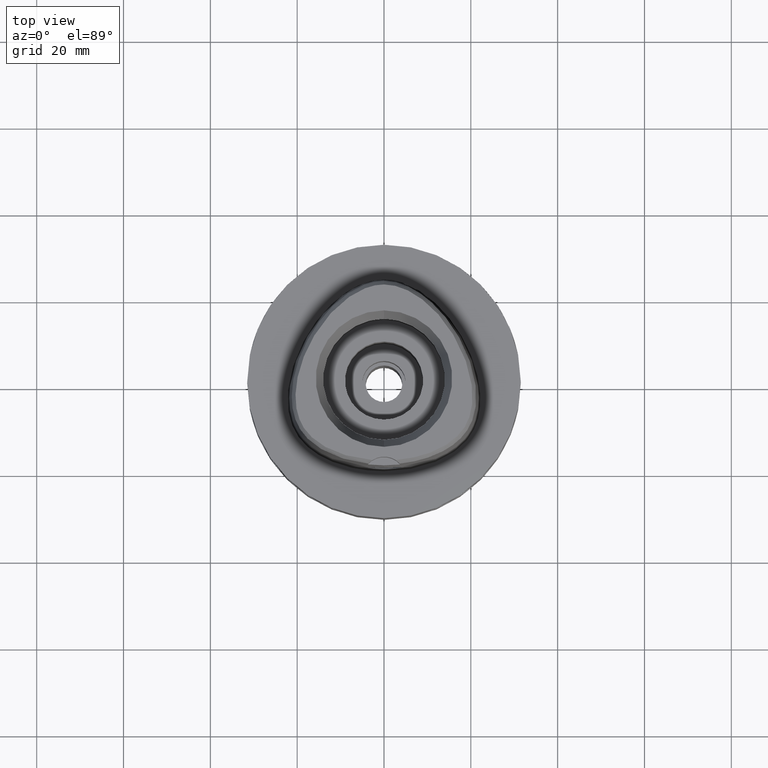
[diagram: clean part render]
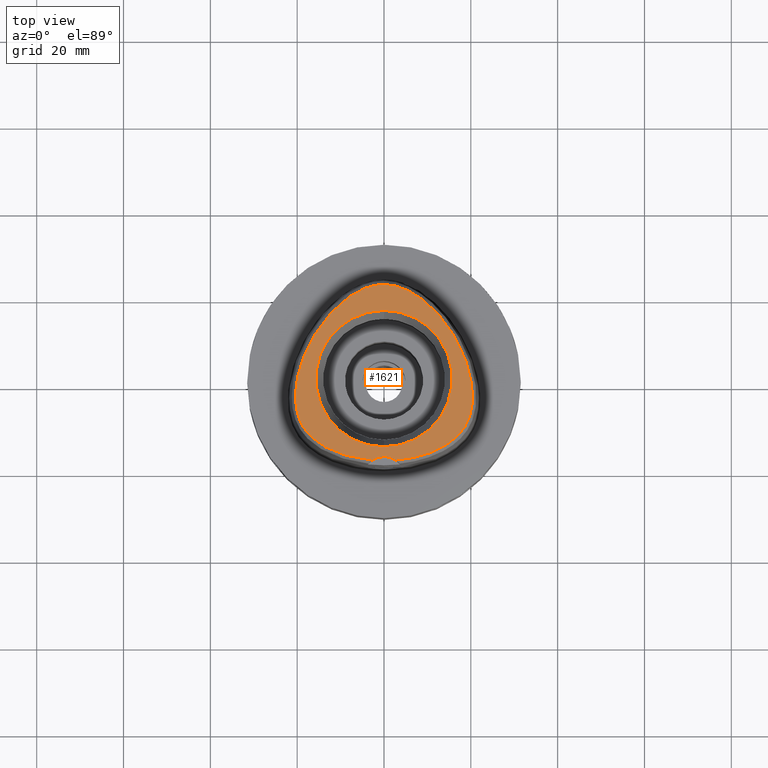
[diagram: same view with one face highlighted and labeled with its STEP entity id]
A machine part, top view. The second image highlights one B-rep face of the part: STEP entity #1621.
In plain terms, the highlighted planar face has unit normal (0, 0, 1).
Its self-contained STEP definition (entity closure, byte-faithful):
#42 = CARTESIAN_POINT ( 'NONE',  ( 8.936919536467701874, -17.64796721715526928, 37.99999999999491251 ) ) ;
#66 = ORIENTED_EDGE ( 'NONE', *, *, #806, .F. ) ;
#69 = CARTESIAN_POINT ( 'NONE',  ( -2.017025177696529337, 21.50280829368446689, 37.99999999999854339 ) ) ;
#71 = CARTESIAN_POINT ( 'NONE',  ( 19.26272899268388628, 2.870227893749941916, 37.99999999999648281 ) ) ;
#98 = CARTESIAN_POINT ( 'NONE',  ( 19.28677546797459996, -9.867757137506609766, 37.99999999999884182 ) ) ;
#120 = CARTESIAN_POINT ( 'NONE',  ( 18.24247239569350398, 5.672548708072119084, 37.99999999999898392 ) ) ;
#122 = CARTESIAN_POINT ( 'NONE',  ( -19.64434054692886633, 1.520253387635681852, 37.99999999999565148 ) ) ;
#153 = CARTESIAN_POINT ( 'NONE',  ( -17.60426951086779468, 7.098774535281950016, 37.99999999999732836 ) ) ;
#227 = AXIS2_PLACEMENT_3D ( 'NONE', #2944, #544, #598 ) ;
#304 = CARTESIAN_POINT ( 'NONE',  ( -17.45119705493778639, -12.68365517585831270, 38.00000000000115818 ) ) ;
#332 = CARTESIAN_POINT ( 'NONE',  ( -6.188376196366395021, -18.31830638231308939, 38.00000000000027711 ) ) ;
#351 = CARTESIAN_POINT ( 'NONE',  ( -7.599370508970323179, -18.01010694911634147, 38.00000000000607514 ) ) ;
#386 = AXIS2_PLACEMENT_3D ( 'NONE', #3583, #850, #4761 ) ;
#409 = CARTESIAN_POINT ( 'NONE',  ( -4.706994425064502607, -18.56721852572561815, 38.00000000000405009 ) ) ;
#434 = CARTESIAN_POINT ( 'NONE',  ( 18.79595068776498934, 4.257753965101998439, 37.99999999999964473 ) ) ;
#456 = CARTESIAN_POINT ( 'NONE',  ( -9.524337278001969054, 17.70558492631498382, 37.99999999999921840 ) ) ;
#459 = CARTESIAN_POINT ( 'NONE',  ( 13.33890749495594719, -15.84912955619630104, 37.99999999998986766 ) ) ;
#507 = VERTEX_POINT ( 'NONE', #3949 ) ;
#512 = CARTESIAN_POINT ( 'NONE',  ( 14.34383722811826267, 12.54786717290611442, 37.99999999999087663 ) ) ;
#514 = CARTESIAN_POINT ( 'NONE',  ( -1.323674540694129487, 21.61098849315879633, 38.00000000000405009 ) ) ;
#517 = CARTESIAN_POINT ( 'NONE',  ( 11.32341394162884995, -16.80569392800747153, 37.99999999999094058 ) ) ;
#544 = DIRECTION ( 'NONE',  ( 0.0000000000000000000, 0.0000000000000000000, 1.000000000000000000 ) ) ;
#571 = CARTESIAN_POINT ( 'NONE',  ( 15.24661770199557687, 11.25762885478326858, 37.99999999999347011 ) ) ;
#598 = DIRECTION ( 'NONE',  ( 0.0000000000000000000, 1.000000000000000000, 0.0000000000000000000 ) ) ;
#605 = EDGE_CURVE ( 'NONE', #3202, #4767, #3349, .T. ) ;
#682 = EDGE_LOOP ( 'NONE', ( #5007, #66 ) ) ;
#688 = CARTESIAN_POINT ( 'NONE',  ( -14.21001600787658781, -15.34519100085826082, 37.99999999999408118 ) ) ;
#716 = CARTESIAN_POINT ( 'NONE',  ( -19.78262210840121682, -8.543146992552381747, 38.00000000000013500 ) ) ;
#806 = EDGE_CURVE ( 'NONE', #507, #1078, #2995, .T. ) ;
#820 = CARTESIAN_POINT ( 'NONE',  ( 2.682287482605000051, -18.78036330228999873, 38.00000000000000000 ) ) ;
#844 = CARTESIAN_POINT ( 'NONE',  ( 10.17751632998310285, -17.24426134458626336, 37.99999999999257483 ) ) ;
#850 = DIRECTION ( 'NONE',  ( 0.0000000000000000000, 0.0000000000000000000, 1.000000000000000000 ) ) ;
#873 = CARTESIAN_POINT ( 'NONE',  ( 19.64387775268619052, 1.522048414458316845, 37.99999999999405986 ) ) ;
#881 = FACE_BOUND ( 'NONE', #682, .T. ) ;
#905 = CARTESIAN_POINT ( 'NONE',  ( 20.38292172608012720, -3.276278498261468997, 37.99999999999548095 ) ) ;
#928 = CARTESIAN_POINT ( 'NONE',  ( 9.524842839488844248, 17.70516372194772003, 37.99999999999815259 ) ) ;
#955 = CARTESIAN_POINT ( 'NONE',  ( 10.48999540691457888, 16.86597469869714061, 37.99999999999889155 ) ) ;
#1031 = CARTESIAN_POINT ( 'NONE',  ( 12.44125753246534316, 14.89118158853564999, 37.99999999999480593 ) ) ;
#1047 = ORIENTED_EDGE ( 'NONE', *, *, #4976, .F. ) ;
#1078 = VERTEX_POINT ( 'NONE', #1542 ) ;
#1133 = CARTESIAN_POINT ( 'NONE',  ( -18.31748213707455974, -11.58791794387469309, 37.99999999999997158 ) ) ;
#1142 = DIRECTION ( 'NONE',  ( 0.0000000000000000000, 0.0000000000000000000, 1.000000000000000000 ) ) ;
#1156 = CARTESIAN_POINT ( 'NONE',  ( -18.99520880204309847, -10.46968343925843570, 37.99999999999902656 ) ) ;
#1171 = CARTESIAN_POINT ( 'NONE',  ( 2.682287482605000051, -18.78036330228999873, 38.00000000000000000 ) ) ;
#1207 = CARTESIAN_POINT ( 'NONE',  ( -6.759433772716881172, 19.65454812513164384, 37.99999999999713651 ) ) ;
#1211 = CARTESIAN_POINT ( 'NONE',  ( 20.36412151360789480, -5.276385427453984533, 37.99999999999935341 ) ) ;
#1287 = CARTESIAN_POINT ( 'NONE',  ( -4.254559144978085961, 20.86660163697186832, 37.99999999999826628 ) ) ;
#1317 = CARTESIAN_POINT ( 'NONE',  ( 3.482188079160194683, 21.13472718027237107, 37.99999999999611333 ) ) ;
#1319 = CARTESIAN_POINT ( 'NONE',  ( -7.655222869372075856, 19.09452359226123619, 37.99999999999685230 ) ) ;
#1341 = B_SPLINE_CURVE_WITH_KNOTS ( 'NONE', 3,
 ( #3062, #3888, #3037, #409, #332, #351, #3863, #1921, #1899, #4992, #2629, #688, #2257, #4635, #3819, #3842, #304, #1492, #1133, #4609, #1156, #4219, #1548, #716, #4247, #2303, #5044, #4268, #3499, #3110, #4679, #2395, #2107, #122, #2422, #4818, #3990, #153, #2753, #2831, #4432, #4783, #3964, #4043, #3574, #3632, #456, #3163, #1319, #1207, #3602, #2016, #1287, #1643, #2863, #69, #514, #4402, #4323, #3191 ),
 .UNSPECIFIED., .F., .F.,
 ( 4, 1, 1, 1, 1, 1, 1, 1, 1, 1, 1, 1, 1, 1, 1, 1, 1, 1, 1, 1, 1, 1, 1, 1, 1, 1, 1, 1, 1, 1, 1, 1, 1, 1, 1, 1, 1, 1, 1, 1, 1, 1, 1, 1, 1, 1, 1, 1, 1, 1, 1, 1, 1, 1, 1, 1, 1, 4 ),
 ( 0.0000000000000000000, 0.005420919554200098744, 0.02318126027639999531, 0.04094160099879995407, 0.05870194172099996166, 0.07646228244330000035, 0.09422262316550000794, 0.1119829638877999356, 0.1297433046099999432, 0.1475036453321999508, 0.1652639860544999895, 0.1830243267768000281, 0.2007846674991000668, 0.2185450082212999634, 0.2363053489436000021, 0.2540656896658000097, 0.2718260303881000484, 0.2895863711103000560, 0.3073467118325999836, 0.3251070525547999912, 0.3428673932771000299, 0.3606277339994000686, 0.3783880747216000762, 0.3961484154438998928, 0.4139087561661000114, 0.4316690968884000501, 0.4494294376106000577, 0.4671897783328999854, 0.4849501190552000240, 0.5027104597774000316, 0.5204708004996999593, 0.5382311412219000779, 0.5559914819442000056, 0.5737518226664000132, 0.5915121633886999408, 0.6092725041108999484, 0.6270328448331999871, 0.6447931855555000258, 0.6625535262777000334, 0.6803138669999999610, 0.6980742077221999686, 0.7158345484445000073, 0.7335948891667000149, 0.7513552298890000536, 0.7691155706112000612, 0.7868759113336000199, 0.8046362520558000275, 0.8223965927780999552, 0.8401569335002999628, 0.8579172742224999704, 0.8756776149448000091, 0.8934379556670000166, 0.9111982963893099363, 0.9289586371115700070, 0.9467189778338299666, 0.9644793185560800453, 0.9822396592783400049, 1.000000000000000000 ),
 .UNSPECIFIED. ) ;
#1342 = CARTESIAN_POINT ( 'NONE',  ( 2.018320379028657907, 21.50256508436132563, 37.99999999999995026 ) ) ;
#1399 = CARTESIAN_POINT ( 'NONE',  ( 0.2185816947241176200, 21.68728795389549902, 37.99999999999973710 ) ) ;
#1492 = CARTESIAN_POINT ( 'NONE',  ( -17.91005512243793873, -12.13778127739314527, 37.99999999999658939 ) ) ;
#1542 = CARTESIAN_POINT ( 'NONE',  ( 0.0000000000000000000, -15.71487483155999776, 38.00000000000000000 ) ) ;
#1548 = CARTESIAN_POINT ( 'NONE',  ( -19.54919922642363161, -9.228169790568518494, 38.00000000000584777 ) ) ;
#1558 = DIRECTION ( 'NONE',  ( 0.0000000000000000000, -1.000000000000000000, 0.0000000000000000000 ) ) ;
#1621 = ADVANCED_FACE ( 'NONE', ( #1999, #881 ), #4354, .T. ) ;
#1643 = CARTESIAN_POINT ( 'NONE',  ( -3.481017203588811615, 21.13509756882025314, 37.99999999999435119 ) ) ;
#1645 = CARTESIAN_POINT ( 'NONE',  ( 6.196495988003700717, -18.31673538864756523, 37.99999999999469225 ) ) ;
#1700 = CARTESIAN_POINT ( 'NONE',  ( 8.578848111817103828, 18.44609846599095704, 37.99999999999177192 ) ) ;
#1729 = CARTESIAN_POINT ( 'NONE',  ( 1.325020189552436944, 21.61081414408760537, 37.99999999999567279 ) ) ;
#1858 = ORIENTED_EDGE ( 'NONE', *, *, #605, .F. ) ;
#1899 = CARTESIAN_POINT ( 'NONE',  ( -11.31790883121297142, -16.80796958613586867, 37.99999999999774047 ) ) ;
#1921 = CARTESIAN_POINT ( 'NONE',  ( -10.17136073855721001, -17.24644253470670563, 37.99999999999995737 ) ) ;
#1971 = CARTESIAN_POINT ( 'NONE',  ( 18.67722910598444130, -11.03372143227622892, 38.00000000000230216 ) ) ;
#1992 = CARTESIAN_POINT ( 'NONE',  ( 20.15982952132270611, -1.007721426051756186, 38.00000000000156319 ) ) ;
#1999 = FACE_OUTER_BOUND ( 'NONE', #3882, .T. ) ;
#2016 = CARTESIAN_POINT ( 'NONE',  ( -5.058220461389427491, 20.53445508814305498, 38.00000000000185452 ) ) ;
#2020 = CARTESIAN_POINT ( 'NONE',  ( 12.37622418509479161, -16.33871033285616292, 37.99999999999543832 ) ) ;
#2052 = CARTESIAN_POINT ( 'NONE',  ( 19.78323211892486455, -8.541156231035589741, 37.99999999999243272 ) ) ;
#2075 = CARTESIAN_POINT ( 'NONE',  ( 17.60373714028049363, 7.099883643193088290, 37.99999999999652545 ) ) ;
#2085 = AXIS2_PLACEMENT_3D ( 'NONE', #2322, #3471, #2651 ) ;
#2107 = CARTESIAN_POINT ( 'NONE',  ( -19.94188961899465085, 0.2242544969876305860, 38.00000000000213873 ) ) ;
#2135 = CARTESIAN_POINT ( 'NONE',  ( 16.09765529146661933, 9.909410920132556200, 37.99999999999565858 ) ) ;
#2182 = CARTESIAN_POINT ( 'NONE',  ( 6.760281394351416395, 19.65404668909679131, 37.99999999999015188 ) ) ;
#2227 = ORIENTED_EDGE ( 'NONE', *, *, #3394, .F. ) ;
#2257 = CARTESIAN_POINT ( 'NONE',  ( -15.00295592774047471, -14.82617991125724544, 38.00000000000325429 ) ) ;
#2303 = CARTESIAN_POINT ( 'NONE',  ( -20.15090095364822886, -7.024227649787703420, 38.00000000000101608 ) ) ;
#2322 = CARTESIAN_POINT ( 'NONE',  ( 0.0000000000000000000, -23.00000000000000000, 38.00000000000000000 ) ) ;
#2358 = CIRCLE ( 'NONE', #2603, 15.71487483155999776 ) ;
#2375 = CARTESIAN_POINT ( 'NONE',  ( 19.94150023627845414, 0.2261566111946081148, 37.99999999999852207 ) ) ;
#2395 = CARTESIAN_POINT ( 'NONE',  ( -20.16012968311473585, -1.009698174524458425, 37.99999999999941735 ) ) ;
#2398 = CARTESIAN_POINT ( 'NONE',  ( 7.606839420238126870, -18.00827588386687950, 37.99999999999743494 ) ) ;
#2422 = CARTESIAN_POINT ( 'NONE',  ( -19.26324493738755805, 2.868570891456995398, 38.00000000000475353 ) ) ;
#2428 = CARTESIAN_POINT ( 'NONE',  ( 16.36283630828564739, -13.76236604535315422, 38.00000000000027711 ) ) ;
#2458 = CARTESIAN_POINT ( 'NONE',  ( 15.72078707639956363, -14.29615620309362889, 37.99999999999920419 ) ) ;
#2481 = CARTESIAN_POINT ( 'NONE',  ( 11.46587147799800377, 15.92717600803590017, 37.99999999999738520 ) ) ;
#2525 = CARTESIAN_POINT ( 'NONE',  ( -2.682279906006999948, -18.78035848609999903, 38.00000000000000000 ) ) ;
#2557 = CARTESIAN_POINT ( 'NONE',  ( 5.059249257020779211, 20.53399274679141229, 37.99999999999111111 ) ) ;
#2570 = CIRCLE ( 'NONE', #2085, 5.000000000000000888 ) ;
#2603 = AXIS2_PLACEMENT_3D ( 'NONE', #3046, #1142, #1558 ) ;
#2629 = CARTESIAN_POINT ( 'NONE',  ( -13.33457781970505529, -15.85148397417158606, 38.00000000000153477 ) ) ;
#2651 = DIRECTION ( 'NONE',  ( 0.0000000000000000000, 1.000000000000000000, 0.0000000000000000000 ) ) ;
#2726 = CARTESIAN_POINT ( 'NONE',  ( 16.93855157778032350, -13.22377441789432062, 37.99999999999205613 ) ) ;
#2753 = CARTESIAN_POINT ( 'NONE',  ( -16.88647904405124933, 8.517821442302949464, 38.00000000000085265 ) ) ;
#2756 = CARTESIAN_POINT ( 'NONE',  ( 20.30478359882087958, -2.175347700950579721, 37.99999999999896261 ) ) ;
#2778 = CARTESIAN_POINT ( 'NONE',  ( 20.40062138795055802, -4.309334958867799159, 38.00000000000336797 ) ) ;
#2831 = CARTESIAN_POINT ( 'NONE',  ( -16.09805956313797637, 9.908742513517482919, 38.00000000000095923 ) ) ;
#2835 = CARTESIAN_POINT ( 'NONE',  ( 20.27923816685744640, -6.179850483268250372, 37.99999999999767653 ) ) ;
#2863 = CARTESIAN_POINT ( 'NONE',  ( -2.735698246183497329, 21.34559102902526107, 38.00000000000302691 ) ) ;
#2944 = CARTESIAN_POINT ( 'NONE',  ( 0.0000000000000000000, 0.0000000000000000000, 38.00000000000000000 ) ) ;
#2995 = CIRCLE ( 'NONE', #227, 15.71487483155999776 ) ;
#3037 = CARTESIAN_POINT ( 'NONE',  ( -3.522896839653990586, -18.70811514173499646, 38.00000000000159872 ) ) ;
#3046 = CARTESIAN_POINT ( 'NONE',  ( 0.0000000000000000000, 0.0000000000000000000, 38.00000000000000000 ) ) ;
#3062 = CARTESIAN_POINT ( 'NONE',  ( -2.682279906006999948, -18.78035848609999903, 38.00000000000000000 ) ) ;
#3110 = CARTESIAN_POINT ( 'NONE',  ( -20.38301517462542733, -3.278344853327925801, 38.00000000000482459 ) ) ;
#3112 = CARTESIAN_POINT ( 'NONE',  ( 17.45306278053348592, -12.68156296993723764, 37.99999999999839417 ) ) ;
#3163 = CARTESIAN_POINT ( 'NONE',  ( -8.578220530113762621, 18.44656747109432260, 38.00000000000381561 ) ) ;
#3191 = CARTESIAN_POINT ( 'NONE',  ( -3.470663397232999849E-11, 21.68728795390000030, 38.00000000000000000 ) ) ;
#3202 = VERTEX_POINT ( 'NONE', #5057 ) ;
#3221 = CARTESIAN_POINT ( 'NONE',  ( 19.98468477323425674, -7.807876343103481886, 37.99999999999460698 ) ) ;
#3282 = EDGE_CURVE ( 'NONE', #1078, #507, #2358, .T. ) ;
#3324 = CARTESIAN_POINT ( 'NONE',  ( -3.470663397232999849E-11, 21.68728795390000030, 38.00000000000000000 ) ) ;
#3349 = B_SPLINE_CURVE_WITH_KNOTS ( 'NONE', 3,
 ( #3324, #1399, #4041, #1729, #1342, #4070, #1317, #4511, #2557, #4528, #2182, #3740, #1700, #928, #955, #2481, #1031, #3630, #512, #571, #2135, #3689, #2075, #120, #434, #71, #873, #2375, #1992, #2756, #905, #2778, #1211, #2835, #4731, #3221, #2052, #4325, #98, #3942, #1971, #4408, #3546, #3112, #2726, #2428, #2458, #4349, #4019, #459, #2020, #517, #844, #42, #2398, #1645, #3966, #4706, #3605, #820 ),
 .UNSPECIFIED., .F., .F.,
 ( 4, 1, 1, 1, 1, 1, 1, 1, 1, 1, 1, 1, 1, 1, 1, 1, 1, 1, 1, 1, 1, 1, 1, 1, 1, 1, 1, 1, 1, 1, 1, 1, 1, 1, 1, 1, 1, 1, 1, 1, 1, 1, 1, 1, 1, 1, 1, 1, 1, 1, 1, 1, 1, 1, 1, 1, 1, 4 ),
 ( 0.0000000000000000000, 0.01775854187129999318, 0.03551708374169992855, 0.05327562561200005486, 0.07103416748239999023, 0.08879270935270000553, 0.1065512512231000519, 0.1243097930933999562, 0.1420683349638000026, 0.1598268768341000179, 0.1775854187044000332, 0.1953439605747999686, 0.2131025024450999839, 0.2308610443155000302, 0.2486195861857999345, 0.2663781280563000120, 0.2841366699266000273, 0.3018952117970000737, 0.3196537536672999780, 0.3374122955377000244, 0.3551708374080000397, 0.3729293792782999439, 0.3906879211486999903, 0.4084464630190000056, 0.4262050048894000520, 0.4439635467596999563, 0.4617220886301000027, 0.4794806305004000180, 0.4972391723707999533, 0.5149977142410999686, 0.5327562561113999839, 0.5505147979818000303, 0.5682733398521000456, 0.5860318817224999810, 0.6037904235927999963, 0.6215489654632000427, 0.6393075073334999470, 0.6570660492038999934, 0.6748245910742000087, 0.6925831329445000240, 0.7103416748149000703, 0.7281002166851999746, 0.7458587585556000210, 0.7636173004259000363, 0.7813758422962999717, 0.7991343841665999870, 0.8168929260370000334, 0.8346514679073000487, 0.8524100097776999840, 0.8701685516479999993, 0.8879270935183000146, 0.9056856353886799660, 0.9234441772589799813, 0.9412027191293600437, 0.9589612609997000270, 0.9767198028700500023, 0.9944783447403919840, 1.000000000000000000 ),
 .UNSPECIFIED. ) ;
#3394 = EDGE_CURVE ( 'NONE', #3464, #3202, #1341, .T. ) ;
#3464 = VERTEX_POINT ( 'NONE', #2525 ) ;
#3471 = DIRECTION ( 'NONE',  ( 0.0000000000000000000, 0.0000000000000000000, 1.000000000000000000 ) ) ;
#3499 = CARTESIAN_POINT ( 'NONE',  ( -20.40060226222929529, -4.311417605381857143, 38.00000000000427036 ) ) ;
#3546 = CARTESIAN_POINT ( 'NONE',  ( 17.91165267838755781, -12.13575389397739457, 38.00000000000238742 ) ) ;
#3574 = CARTESIAN_POINT ( 'NONE',  ( -11.46564124494122616, 15.92741340513163095, 38.00000000000076739 ) ) ;
#3583 = CARTESIAN_POINT ( 'NONE',  ( 0.0000000000000000000, 0.0000000000000000000, 38.00000000000000000 ) ) ;
#3602 = CARTESIAN_POINT ( 'NONE',  ( -5.893543501600909451, 20.13235399351739829, 38.00000000000169109 ) ) ;
#3605 = CARTESIAN_POINT ( 'NONE',  ( 2.845098933833372534, -18.76733062685779529, 37.99999999999836575 ) ) ;
#3630 = CARTESIAN_POINT ( 'NONE',  ( 13.40430406168793098, 13.76274261012999034, 37.99999999999911182 ) ) ;
#3632 = CARTESIAN_POINT ( 'NONE',  ( -10.48962422759333180, 16.86631853279700977, 38.00000000000288480 ) ) ;
#3689 = CARTESIAN_POINT ( 'NONE',  ( 16.88599964843174206, 8.518708218770397522, 37.99999999999980815 ) ) ;
#3740 = CARTESIAN_POINT ( 'NONE',  ( 7.655962789343793595, 19.09402979099818509, 38.00000000000035527 ) ) ;
#3819 = CARTESIAN_POINT ( 'NONE',  ( -16.36032397153769224, -13.76458520345279268, 38.00000000000407141 ) ) ;
#3842 = CARTESIAN_POINT ( 'NONE',  ( -16.93638123745749269, -13.22593246128126943, 37.99999999999629807 ) ) ;
#3863 = CARTESIAN_POINT ( 'NONE',  ( -8.930096025510369628, -17.65000298921189525, 38.00000000000471090 ) ) ;
#3882 = EDGE_LOOP ( 'NONE', ( #1858, #2227, #1047 ) ) ;
#3888 = CARTESIAN_POINT ( 'NONE',  ( -2.841965291530271998, -18.76757795571599274, 37.99999999999702283 ) ) ;
#3942 = CARTESIAN_POINT ( 'NONE',  ( 18.99619228226437073, -10.46780014453310947, 37.99999999999791100 ) ) ;
#3949 = CARTESIAN_POINT ( 'NONE',  ( 0.0000000000000000000, 15.71487483155999776, 38.00000000000000000 ) ) ;
#3964 = CARTESIAN_POINT ( 'NONE',  ( -13.40435640711361565, 13.76268382997145423, 37.99999999999650413 ) ) ;
#3966 = CARTESIAN_POINT ( 'NONE',  ( 4.715576077241885322, -18.56597918135433645, 37.99999999999619149 ) ) ;
#3990 = CARTESIAN_POINT ( 'NONE',  ( -18.24302769442359562, 5.671232572958421869, 37.99999999999744205 ) ) ;
#4019 = CARTESIAN_POINT ( 'NONE',  ( 14.21382211799577000, -15.34284287400133806, 37.99999999999553779 ) ) ;
#4041 = CARTESIAN_POINT ( 'NONE',  ( 0.6513209347955697393, 21.67370899611604429, 38.00000000000164846 ) ) ;
#4043 = CARTESIAN_POINT ( 'NONE',  ( -12.44116897271821820, 14.89128547409543835, 37.99999999999774047 ) ) ;
#4070 = CARTESIAN_POINT ( 'NONE',  ( 2.736932690727070572, 21.34527940057142459, 37.99999999999786837 ) ) ;
#4219 = CARTESIAN_POINT ( 'NONE',  ( -19.28591707036806113, -9.869682450886388736, 37.99999999999467803 ) ) ;
#4247 = CARTESIAN_POINT ( 'NONE',  ( -19.98419490691652811, -7.809898894995721541, 37.99999999999676703 ) ) ;
#4268 = CARTESIAN_POINT ( 'NONE',  ( -20.36398648679830004, -5.278470727084871861, 37.99999999999600675 ) ) ;
#4323 = CARTESIAN_POINT ( 'NONE',  ( -0.2181979014508513837, 21.68728795389261776, 37.99999999999718625 ) ) ;
#4325 = CARTESIAN_POINT ( 'NONE',  ( 19.54993126781963397, -9.226212439886314343, 37.99999999999897682 ) ) ;
#4349 = CARTESIAN_POINT ( 'NONE',  ( 15.00628712263586095, -14.82385870794597160, 37.99999999999307931 ) ) ;
#4354 = PLANE ( 'NONE',  #386 ) ;
#4402 = CARTESIAN_POINT ( 'NONE',  ( -0.6498990081534709029, 21.67378274708093500, 37.99999999999854339 ) ) ;
#4408 = CARTESIAN_POINT ( 'NONE',  ( 18.31883910943627569, -11.58595831187717451, 37.99999999999373301 ) ) ;
#4432 = CARTESIAN_POINT ( 'NONE',  ( -15.24692477332397189, 11.25717358966080361, 38.00000000000082423 ) ) ;
#4511 = CARTESIAN_POINT ( 'NONE',  ( 4.255661039972753024, 20.86618068830050277, 37.99999999999519673 ) ) ;
#4528 = CARTESIAN_POINT ( 'NONE',  ( 5.894487344450683786, 20.13186406531960415, 37.99999999999631228 ) ) ;
#4609 = CARTESIAN_POINT ( 'NONE',  ( -18.67608643721771600, -11.03561202291203891, 38.00000000000306954 ) ) ;
#4635 = CARTESIAN_POINT ( 'NONE',  ( -15.71788912669404326, -14.29843101566190278, 37.99999999999271694 ) ) ;
#4679 = CARTESIAN_POINT ( 'NONE',  ( -20.30498420086991729, -2.177378896257923024, 38.00000000000378719 ) ) ;
#4706 = CARTESIAN_POINT ( 'NONE',  ( 3.529311563348517478, -18.70747079910125521, 37.99999999999928946 ) ) ;
#4731 = CARTESIAN_POINT ( 'NONE',  ( 20.15127154947332855, -7.022178451341676286, 38.00000000000191136 ) ) ;
#4761 = DIRECTION ( 'NONE',  ( 1.000000000000000000, 0.0000000000000000000, 0.0000000000000000000 ) ) ;
#4767 = VERTEX_POINT ( 'NONE', #1171 ) ;
#4783 = CARTESIAN_POINT ( 'NONE',  ( -14.34402387966091297, 12.54761970512775804, 38.00000000000181899 ) ) ;
#4818 = CARTESIAN_POINT ( 'NONE',  ( -18.79649882725127696, 4.256255933891574195, 37.99999999999449329 ) ) ;
#4976 = EDGE_CURVE ( 'NONE', #4767, #3464, #2570, .T. ) ;
#4992 = CARTESIAN_POINT ( 'NONE',  ( -12.37132652997426518, -16.34104299087899648, 37.99999999999727152 ) ) ;
#5007 = ORIENTED_EDGE ( 'NONE', *, *, #3282, .F. ) ;
#5044 = CARTESIAN_POINT ( 'NONE',  ( -20.27898581532256017, -6.181921586189979223, 37.99999999999794653 ) ) ;
#5057 = CARTESIAN_POINT ( 'NONE',  ( -3.470663397232999849E-11, 21.68728795390000030, 38.00000000000000000 ) ) ;